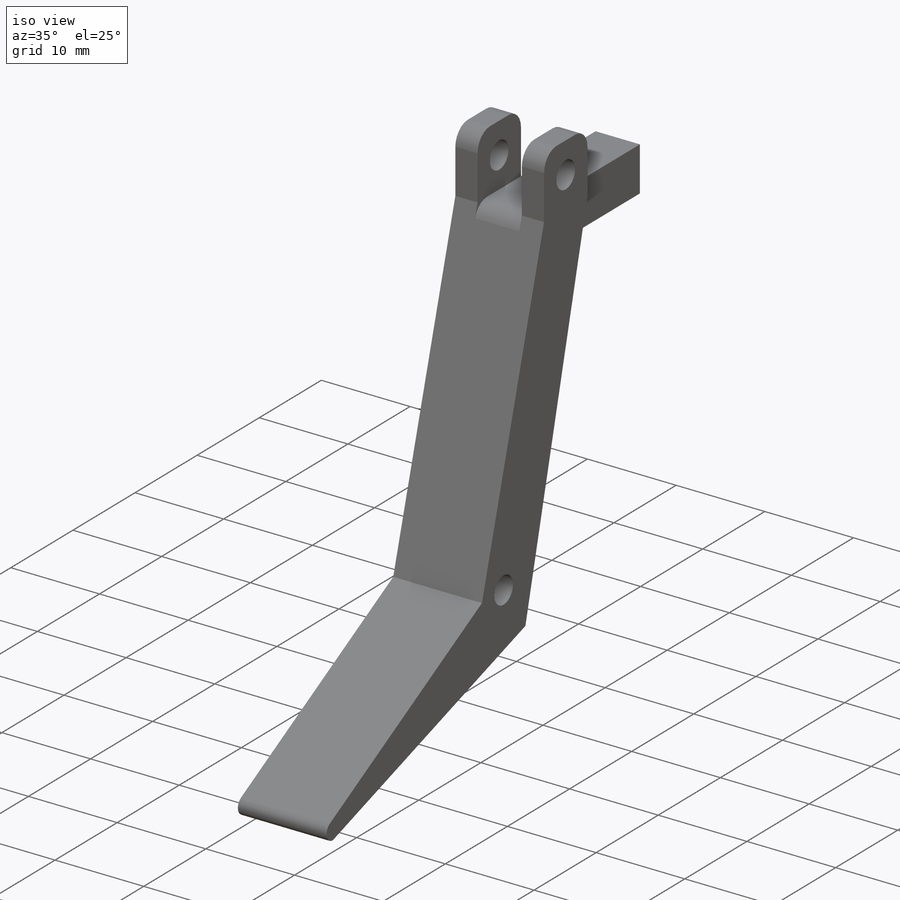
[diagram: iso view]
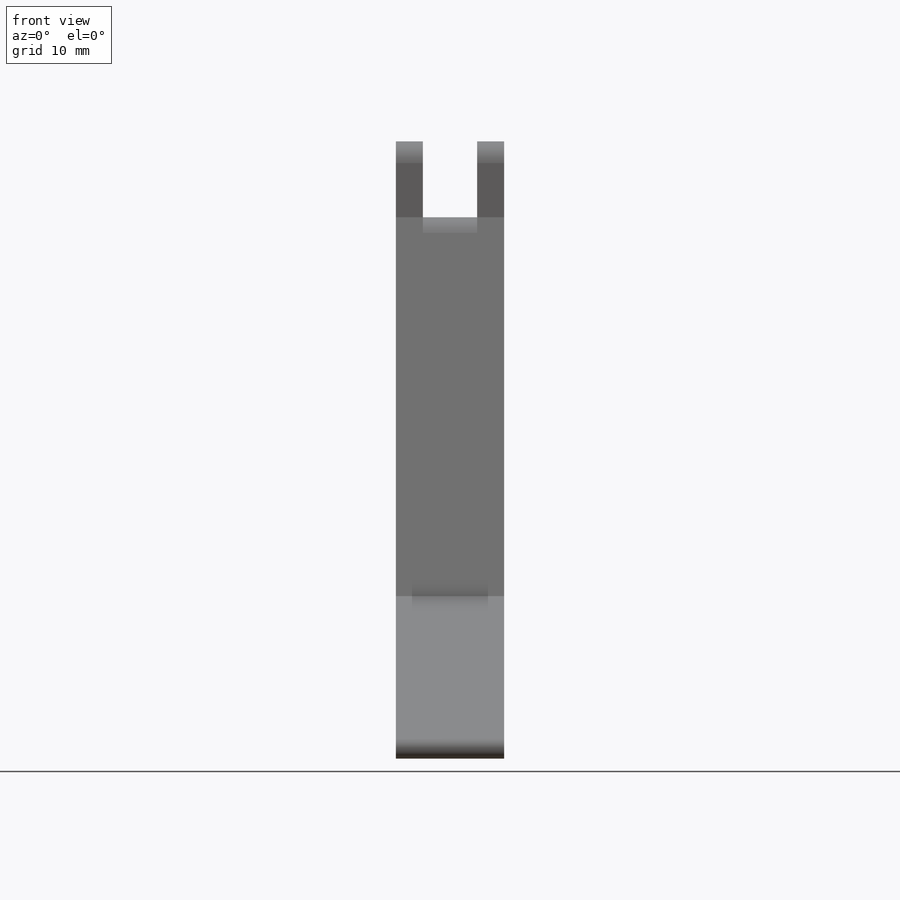
[diagram: front view]
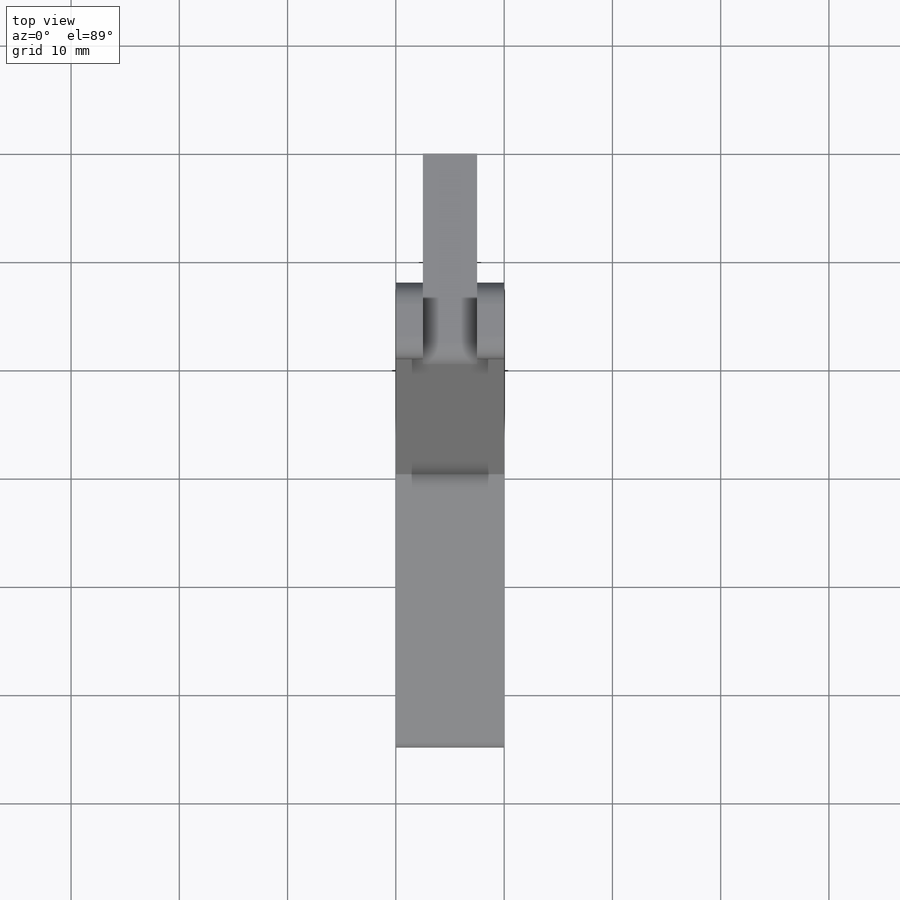
[diagram: top view]
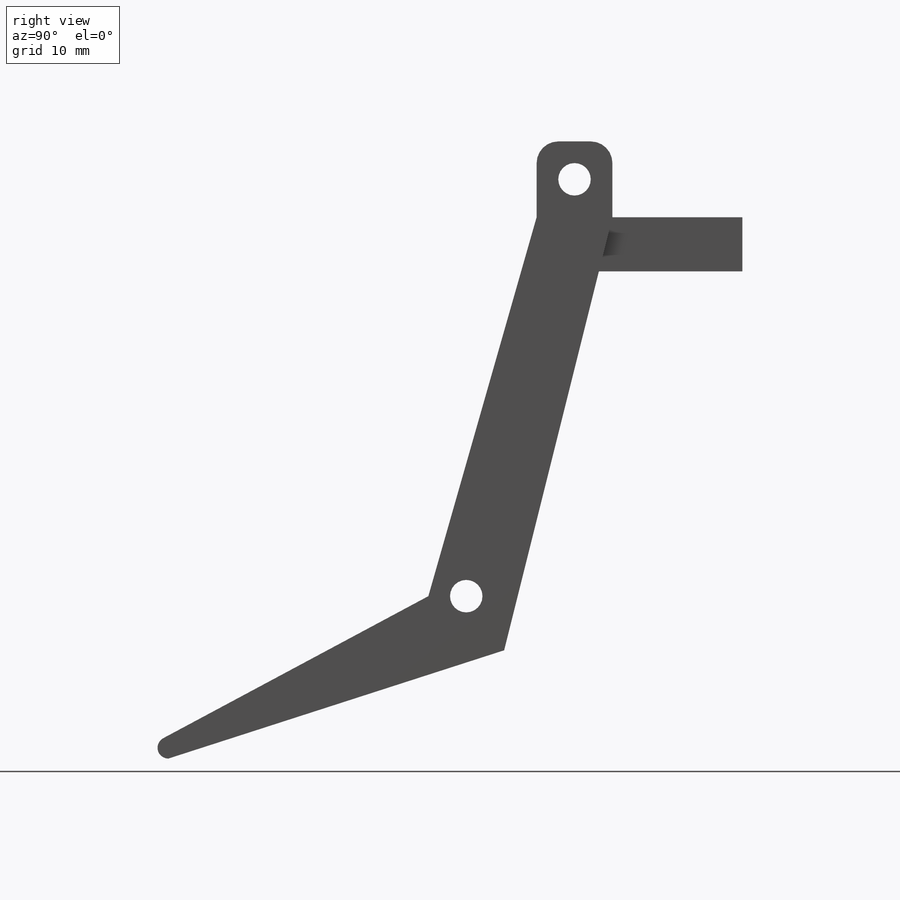
[diagram: right view]
SOLIDWORKS PART (.sldprt)
format: sldprt  version: not decoded by parser v0  size: 252,416 bytes
history: native  units: mm
features: sketch x4, extrude x2, fillet x2, cut_extrude x2, material x1 (+13 scaffold rows collapsed)
feature tree (24):
  scaffold x13  (default folders/planes/origin — collapsed)
  material  "Material <not specified>"
  sketch  "Sketch1"  dims[c1.D11=~1.418486mm c1.D13=~1.451561mm c1.D1=7.0mm c1.D2=7.0mm c1.D3=7.0mm c1.40ü=40.0mm c1.D4=35.0mm c1.D5=10.0mm c1.D6=20.0mm c1.D7=15.0mm c1.D8=15.0mm c1.D9=10.0mm c1.D10=10.0mm c2.D11=3.5mm c2.D12=3.5mm c2.D13=3.5mm]
  extrude  "Boss-Extrude1"  Depth=10mm
  fillet  "Fillet1"  Radius=1mm
  sketch  "Sketch2"  dims[D1=5.0mm D2=2.5mm]
  cut_extrude  "Cut-Extrude1"  Depth=7mm
  fillet  "Fillet3"  Radius=2mm
  sketch  "Sketch3"
  cut_extrude  "Cut-Extrude2"  Depth=20mm
  sketch  "Sketch4"  dims[D1=5.0mm D2=17.5mm]
  extrude  "Boss-Extrude3"  Depth=5mm
decode coverage: 9 of 10 modeling features carry decoded parameters
note: ~ marks probable driven/reference dimensions
note: suppression state not decoded; provenance and decode notes live in map.json
